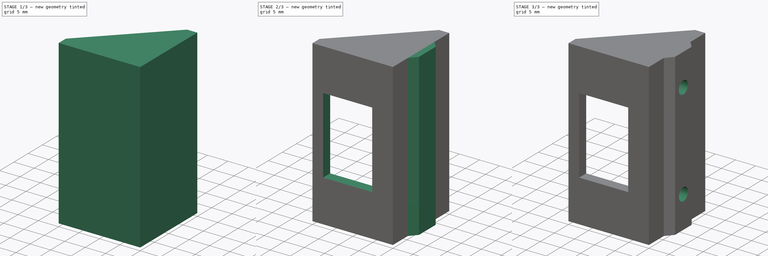
[diagram: build sequence overview — one tinted view per stage of 3, left to right]
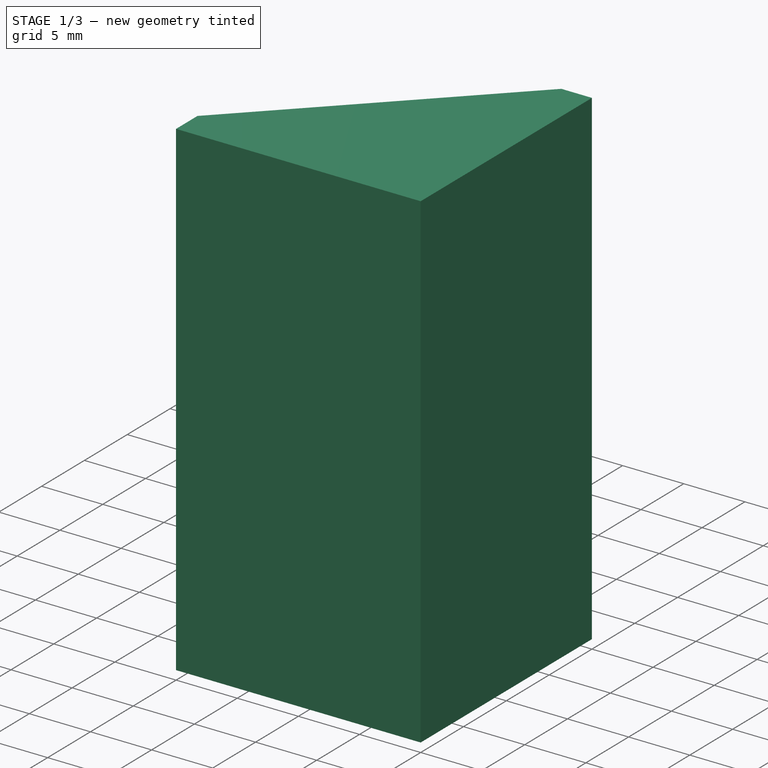
[diagram: stage 1 of 3 — iso view after this stage's code; geometry added in this stage tinted green]
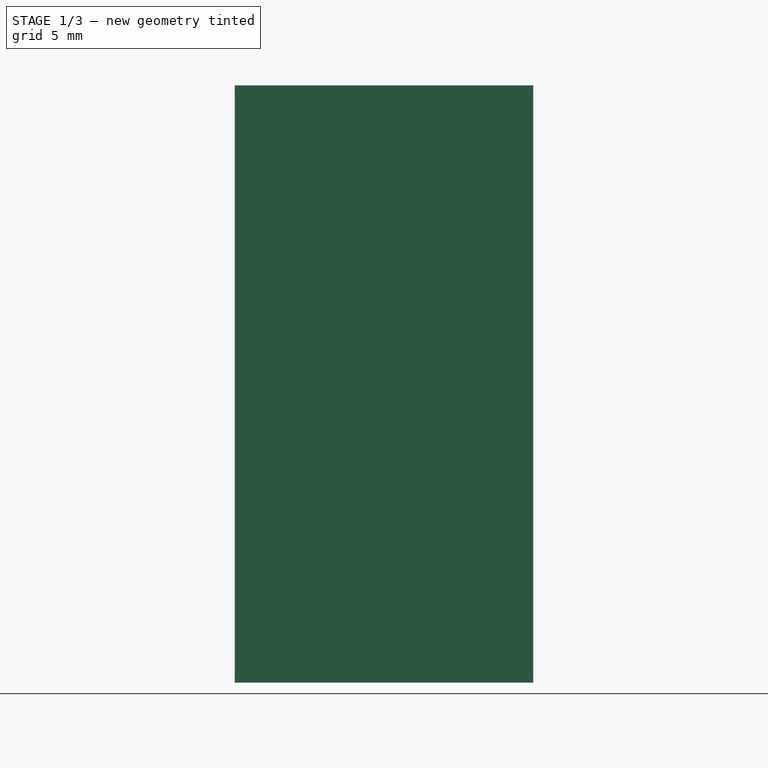
[diagram: stage 1 of 3 — front view after this stage's code; geometry added in this stage tinted green]
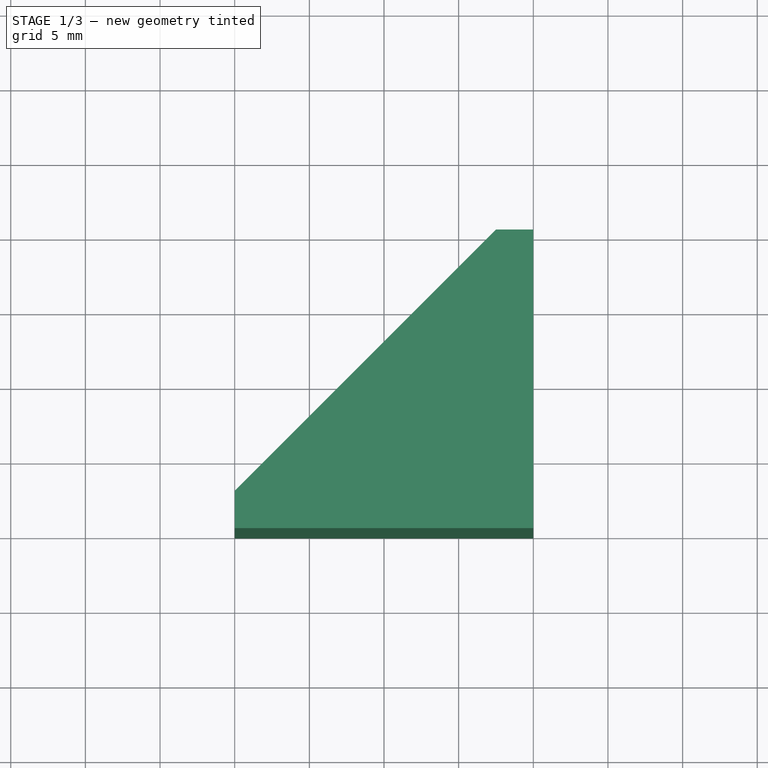
[diagram: stage 1 of 3 — top view after this stage's code; geometry added in this stage tinted green]
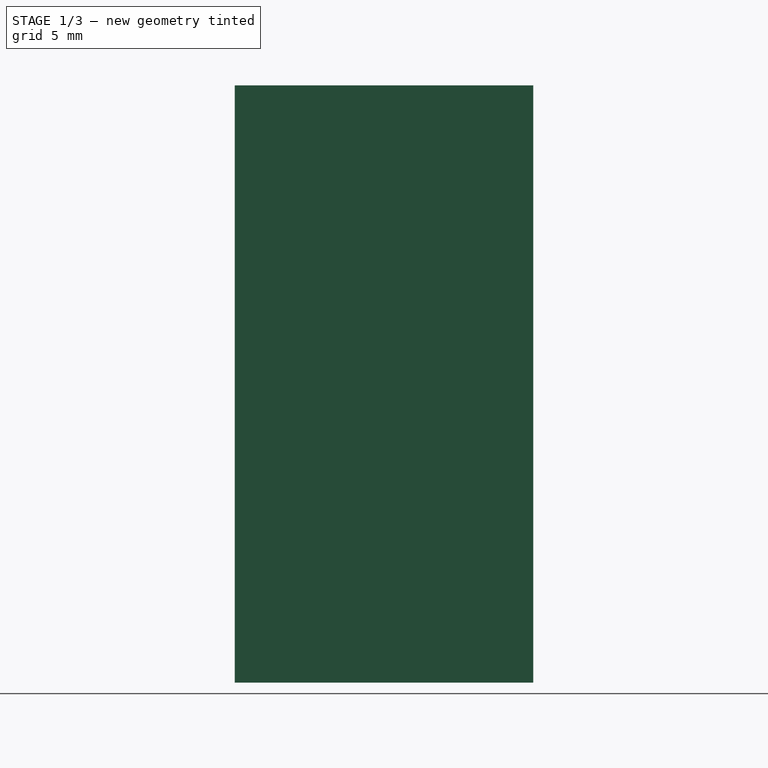
[diagram: stage 1 of 3 — right view after this stage's code; geometry added in this stage tinted green]
FCSTD DOCUMENT  (FreeCAD 0.20R29410 (Git))
Label: suporte-switch
License: All rights reserved
LicenseURL: http://en.wikipedia.org/wiki/All_rights_reserved
objects: Sketcher::SketchObject×6, PartDesign::Pad×4, PartDesign::Pocket×2, PartDesign::Chamfer×1, PartDesign::Body×1
note: 21 computed .brp shape members not serialized (recipe doc carries the construction recipe); baked Part::Feature solids carry a one-line shape summary decoded from their .brp

FEATURE [Sketcher::SketchObject] Sketch
  FullyConstrained = true
  MapMode = 5
  Support = -> [XY_Plane]
  sketch-geometry (6):
    g0: LineSegment StartX=0 StartY=0 StartZ=0 EndX=0 EndY=20 EndZ=0
    g1: LineSegment StartX=0 StartY=20 StartZ=0 EndX=-2.5 EndY=20 EndZ=0
    g2: LineSegment StartX=-2.5 StartY=20 StartZ=0 EndX=-2.5 EndY=2.5 EndZ=0
    g3: LineSegment StartX=-2.5 StartY=2.5 StartZ=0 EndX=-20 EndY=2.5 EndZ=0
    g4: LineSegment StartX=-20 StartY=2.5 StartZ=0 EndX=-20 EndY=0 EndZ=0
    g5: LineSegment StartX=-20 StartY=0 StartZ=0 EndX=0 EndY=0 EndZ=0
  constraints (17):
    c: Coincident(g-1,g0)
    c: Coincident(g0,g1)
    c: Coincident(g1,g2)
    c: Vertical(g2)
    c: Coincident(g2,g3)
    c: Horizontal(g3)
    c: Coincident(g3,g4)
    c: Coincident(g4,g5)
    c: Coincident(g5,g0)
    c: Horizontal(g5)
    c: Vertical(g0)
    c: Horizontal(g1)
    c: Vertical(g4)
    c: Equal(g4,g1)
    c: DistanceX(g5,g5) = 20
    c: Equal(g5,g0)
    c: DistanceY(g4,g4) = 2.5
FEATURE [PartDesign::Pad] Pad
  Direction = (0,0,1)
  Length = 40
  Length2 = 10
  Profile = -> Sketch
  ReferenceAxis = -> Sketch [N_Axis]
  Type = 0
FEATURE [Sketcher::SketchObject] Sketch001
  ExternalGeometry = -> [Pad]
  FullyConstrained = true
  MapMode = 5
  Placement = pos=(0,0,40) rot=(0,0,1;0rad)
  Support = -> [Pad]
  sketch-geometry (3):
    g0: LineSegment StartX=-2.5 StartY=20 StartZ=0 EndX=-20 EndY=2.5 EndZ=0
    g1: LineSegment StartX=-20 StartY=2.5 StartZ=0 EndX=-2.5 EndY=2.5 EndZ=0
    g2: LineSegment StartX=-2.5 StartY=2.5 StartZ=0 EndX=-2.5 EndY=20 EndZ=0
  constraints (6):
    c: Coincident(g0,g1)
    c: Coincident(g1,g2)
    c: Coincident(g2,g0)
    c: Coincident(g1,g-4)
    c: Coincident(g0,g-4)
    c: Coincident(g0,g-3)
FEATURE [PartDesign::Pad] Pad001
  BaseFeature = -> Pad
  Direction = (0,0,1)
  Length = 3
  Length2 = 10
  Profile = -> Sketch001
  ReferenceAxis = -> Sketch001 [N_Axis]
  Reversed = true
  Type = 0
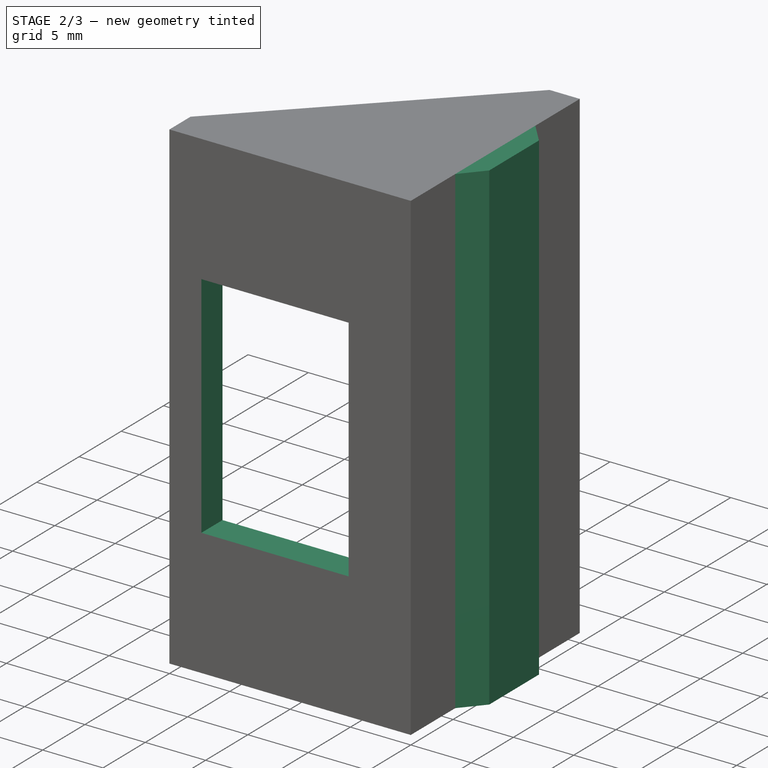
[diagram: stage 2 of 3 — iso view after this stage's code; geometry added in this stage tinted green]
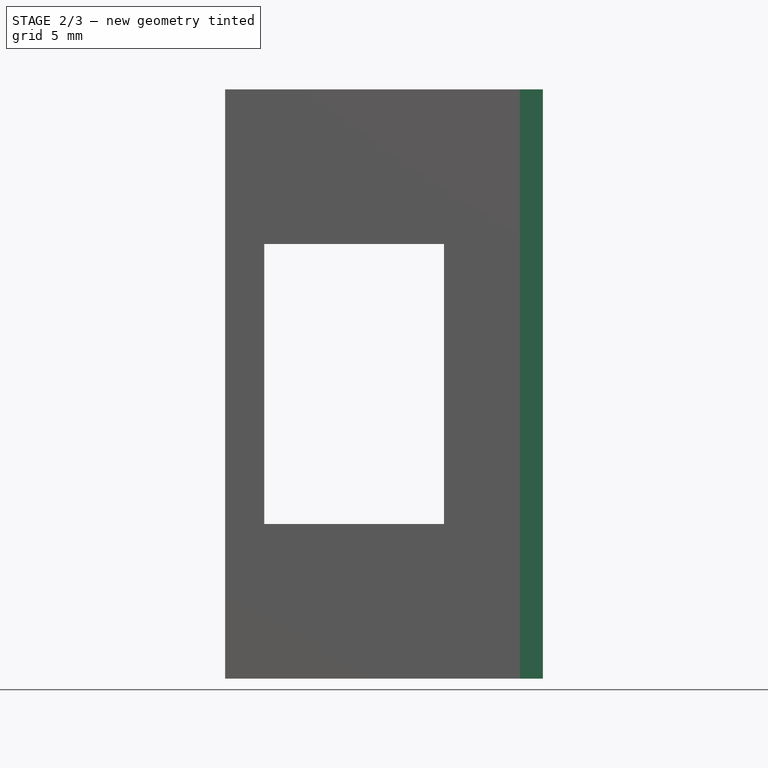
[diagram: stage 2 of 3 — front view after this stage's code; geometry added in this stage tinted green]
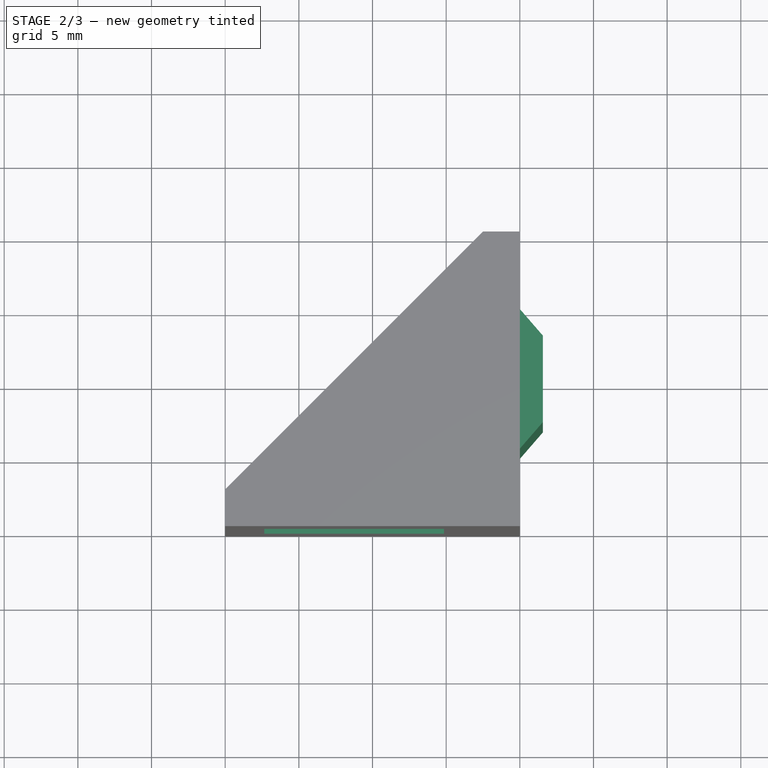
[diagram: stage 2 of 3 — top view after this stage's code; geometry added in this stage tinted green]
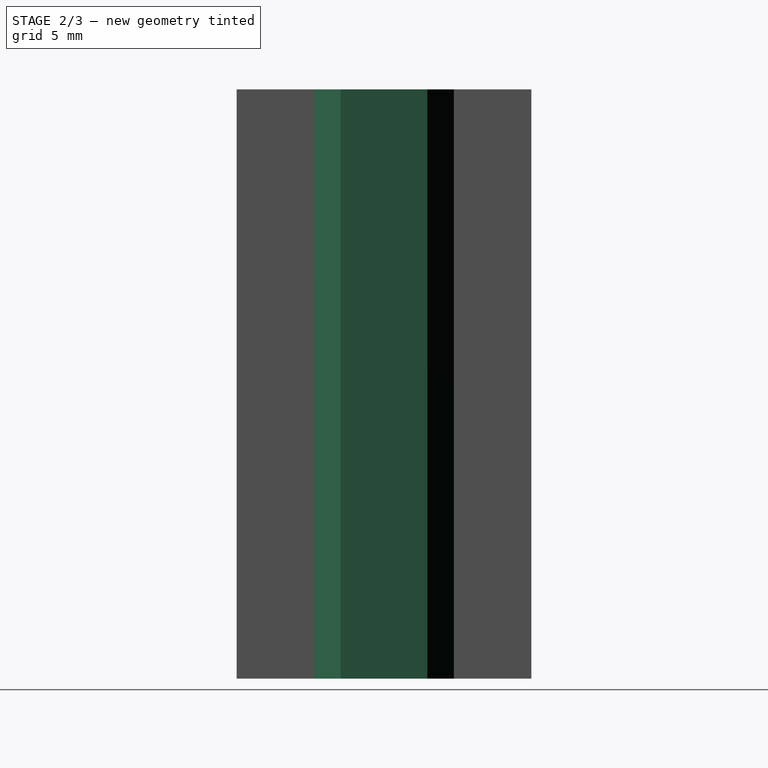
[diagram: stage 2 of 3 — right view after this stage's code; geometry added in this stage tinted green]
FEATURE [Sketcher::SketchObject] Sketch002
  ExternalGeometry = -> [Pad001]
  FullyConstrained = true
  MapMode = 5
  Placement = pos=(0,0,0) rot=(1,0,0;3.14159rad)
  Support = -> [Pad001]
  sketch-geometry (3):
    g0: LineSegment StartX=-20 StartY=-2.5 StartZ=0 EndX=-2.5 EndY=-20 EndZ=0
    g1: LineSegment StartX=-2.5 StartY=-20 StartZ=0 EndX=-2.5 EndY=-2.5 EndZ=0
    g2: LineSegment StartX=-2.5 StartY=-2.5 StartZ=0 EndX=-20 EndY=-2.5 EndZ=0
  constraints (6):
    c: Coincident(g0,g1)
    c: Coincident(g1,g2)
    c: Coincident(g2,g0)
    c: Coincident(g1,g-4)
    c: Coincident(g0,g-4)
    c: Coincident(g0,g-3)
FEATURE [PartDesign::Pad] Pad002
  BaseFeature = -> Pad001
  Direction = (0,0,-1)
  Length = 3
  Length2 = 10
  Profile = -> Sketch002
  ReferenceAxis = -> Sketch002 [N_Axis]
  Reversed = true
  Type = 0
FEATURE [Sketcher::SketchObject] Sketch003
  ExternalGeometry = -> [Pad002]
  FullyConstrained = true
  MapMode = 5
  Placement = pos=(0,0,0) rot=(1,0,0;3.14159rad)
  Support = -> [Pad002]
  sketch-geometry (6):
    g0: LineSegment StartX=0 StartY=-5.26 StartZ=0 EndX=0 EndY=-14.74 EndZ=0
    g1: LineSegment StartX=0 StartY=-14.74 StartZ=0 EndX=1.56 EndY=-12.94 EndZ=0
    g2: LineSegment StartX=1.56 StartY=-12.94 StartZ=0 EndX=1.56 EndY=-7.06 EndZ=0
    g3: LineSegment StartX=1.56 StartY=-7.06 StartZ=0 EndX=0 EndY=-5.26 EndZ=0
    g4: LineSegment StartX=0 StartY=0 StartZ=0 EndX=0 EndY=-5.26 EndZ=0
    g5: LineSegment StartX=0 StartY=-20 StartZ=0 EndX=0 EndY=-14.74 EndZ=0
  constraints (16):
    c: Vertical(g0)
    c: Coincident(g0,g1)
    c: Coincident(g1,g2)
    c: Vertical(g2)
    c: Coincident(g2,g3)
    c: Coincident(g3,g0)
    c: Coincident(g5,g-3)
    c: Coincident(g4,g0)
    c: Coincident(g4,g-1)
    c: Coincident(g5,g0)
    c: PointOnObject(g0,g-2)
    c: DistanceX(g1,g1) = 1.56
    c: DistanceY(g2,g2) = 5.88
    c: Equal(g5,g4)
    c: DistanceY(g0,g0) = 9.48
    c: Equal(g1,g3)
FEATURE [PartDesign::Pad] Pad003
  BaseFeature = -> Pad002
  Direction = (0,0,-1)
  Length = 10
  Length2 = 10
  Profile = -> Sketch003
  ReferenceAxis = -> Sketch003 [N_Axis]
  Reversed = true
  Type = 3
  UpToFace = -> Pad002 [Face5]
FEATURE [Sketcher::SketchObject] Sketch004
  ExternalGeometry = -> [Pad003]
  FullyConstrained = true
  MapMode = 5
  Placement = pos=(0,2.5,0) rot=(0,0.707107,0.707107;3.14159rad)
  Support = -> [Pad003]
  sketch-geometry (9):
    g0: LineSegment StartX=5.15 StartY=29.5 StartZ=0 EndX=17.35 EndY=29.5 EndZ=0
    g1: LineSegment StartX=17.35 StartY=29.5 StartZ=0 EndX=17.35 EndY=10.5 EndZ=0
    g2: LineSegment StartX=17.35 StartY=10.5 StartZ=0 EndX=5.15 EndY=10.5 EndZ=0
    g3: LineSegment StartX=5.15 StartY=10.5 StartZ=0 EndX=5.15 EndY=29.5 EndZ=0
    g4: LineSegment StartX=2.5 StartY=3 StartZ=0 EndX=20 EndY=37 EndZ=0
    g5: LineSegment StartX=2.5 StartY=37 StartZ=0 EndX=20 EndY=3 EndZ=0
    g6: GeomPoint X=11.25 Y=20 Z=0
    g7: LineSegment StartX=5.15 StartY=29.5 StartZ=0 EndX=17.35 EndY=10.5 EndZ=0
    g8: LineSegment StartX=5.15 StartY=10.5 StartZ=0 EndX=17.35 EndY=29.5 EndZ=0
  constraints (22):
    c: Coincident(g0,g1)
    c: Coincident(g1,g2)
    c: Coincident(g2,g3)
    c: Coincident(g3,g0)
    c: Horizontal(g0)
    c: Horizontal(g2)
    c: Vertical(g1)
    c: Vertical(g3)
    c: DistanceY(g1,g1) = 19
    c: DistanceX(g0,g0) = 12.2
    c: Coincident(g4,g-4)
    c: Coincident(g4,g-3)
    c: Coincident(g5,g-3)
    c: Coincident(g5,g-4)
    c: PointOnObject(g6,g5)
    c: PointOnObject(g6,g4)
    c: Coincident(g7,g0)
    c: Coincident(g7,g1)
    c: Coincident(g8,g2)
    c: Coincident(g8,g0)
    c: PointOnObject(g6,g8)
    c: PointOnObject(g6,g7)
FEATURE [PartDesign::Pocket] Pocket
  BaseFeature = -> Pad003
  Direction = (0,-1,2e-16)
  Length = 0
  Length2 = 5
  Profile = -> Sketch004
  ReferenceAxis = -> Sketch004 [N_Axis]
  Type = 3
  UpToFace = -> Pad003 [Face5]
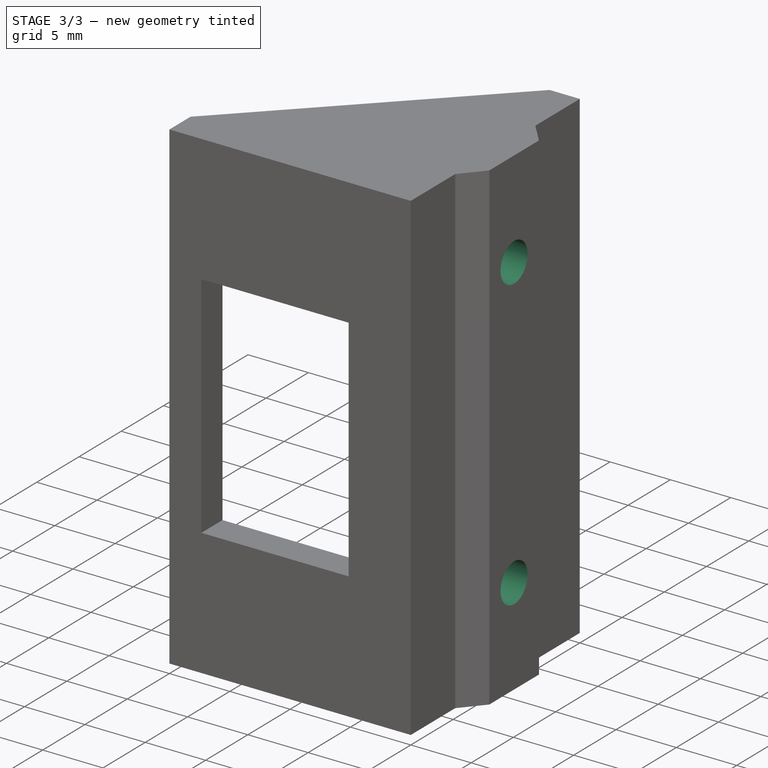
[diagram: stage 3 of 3 — iso view after this stage's code; geometry added in this stage tinted green]
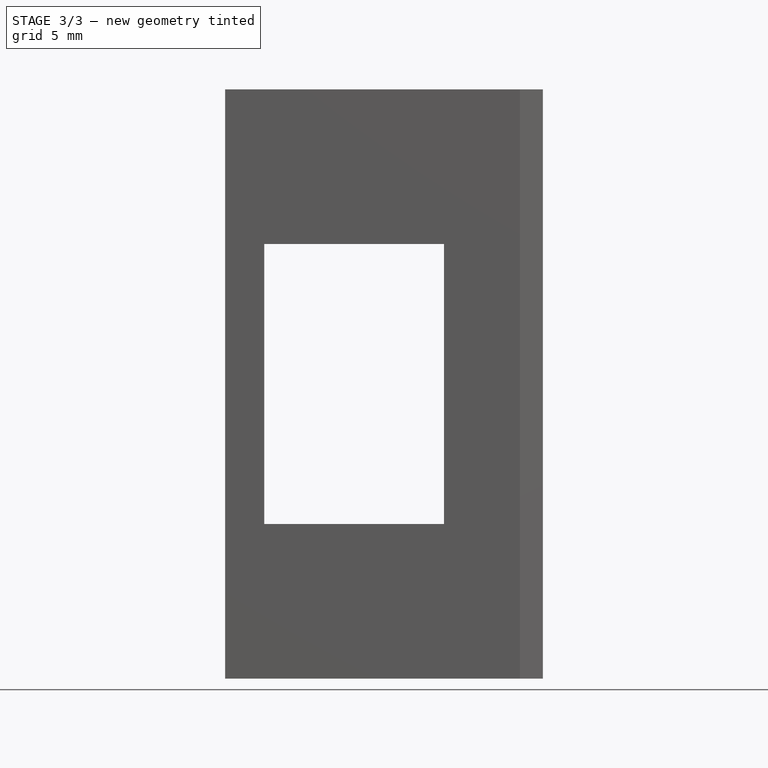
[diagram: stage 3 of 3 — front view after this stage's code; geometry added in this stage tinted green]
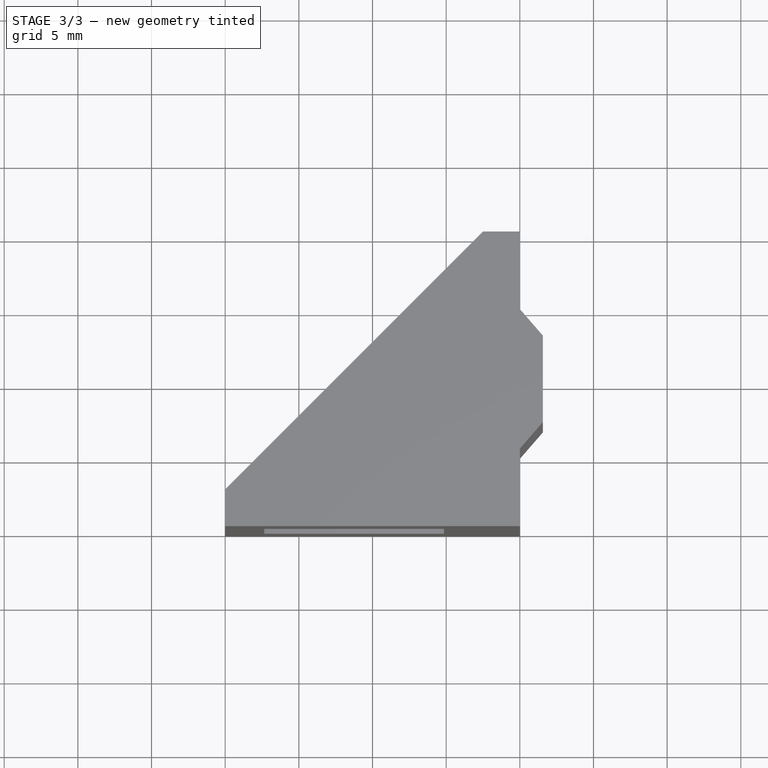
[diagram: stage 3 of 3 — top view after this stage's code; geometry added in this stage tinted green]
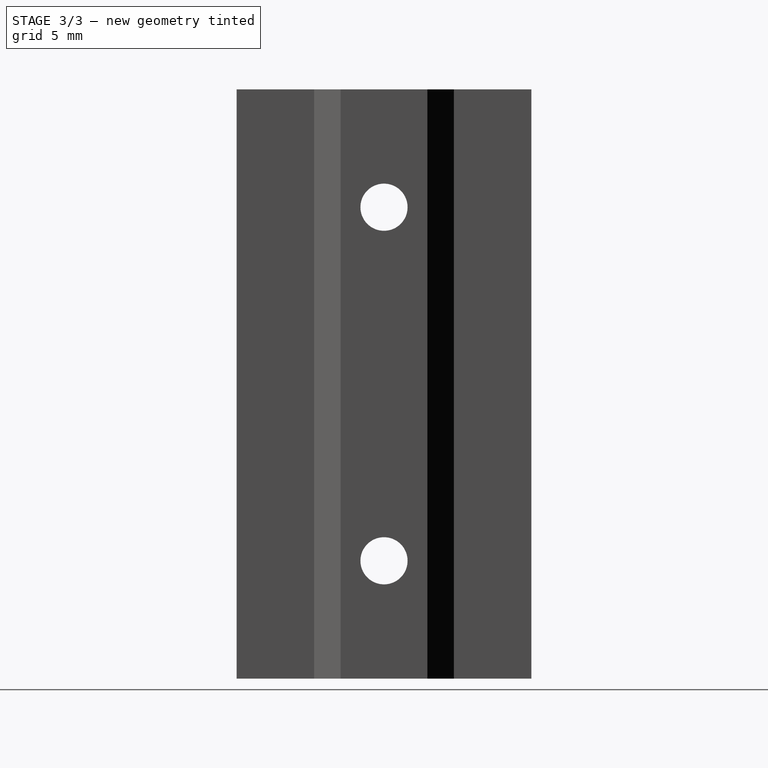
[diagram: stage 3 of 3 — right view after this stage's code; geometry added in this stage tinted green]
FEATURE [Sketcher::SketchObject] Sketch005
  ExternalGeometry = -> [Pocket]
  FullyConstrained = true
  MapMode = 5
  Placement = pos=(1.56,0,0) rot=(0.57735,0.57735,0.57735;2.0944rad)
  Support = -> [Pocket]
  sketch-geometry (6):
    g0: LineSegment StartX=7.06 StartY=40 StartZ=0 EndX=10 EndY=40 EndZ=0
    g1: LineSegment StartX=10 StartY=40 StartZ=0 EndX=12.94 EndY=40 EndZ=0
    g2: LineSegment StartX=10 StartY=40 StartZ=0 EndX=10 EndY=32 EndZ=0
    g3: LineSegment StartX=10 StartY=0 StartZ=0 EndX=10 EndY=8 EndZ=0
    g4: Circle CenterX=10 CenterY=32 CenterZ=0 NormalX=0 NormalY=0 NormalZ=1 AngleXU=0 Radius=1.6
    g5: Circle CenterX=10 CenterY=8 CenterZ=0 NormalX=0 NormalY=0 NormalZ=1 AngleXU=0 Radius=1.6
  constraints (16):
    c: Coincident(g0,g1)
    c: Coincident(g0,g-3)
    c: Coincident(g1,g-3)
    c: PointOnObject(g0,g-3)
    c: Equal(g0,g1)
    c: Coincident(g2,g0)
    c: Vertical(g2)
    c: PointOnObject(g3,g-1)
    c: Vertical(g3)
    c: Vertical(g3,g2)
    c: Equal(g3,g2)
    c: Coincident(g4,g2)
    c: Coincident(g5,g3)
    c: Equal(g5,g4)
    c: Radius(g5) = 1.6
    c: DistanceY(g2,g2) = 8
FEATURE [PartDesign::Pocket] Pocket001
  BaseFeature = -> Pocket
  Direction = (-1,0,0)
  Length = 0
  Length2 = 5
  Profile = -> Sketch005
  ReferenceAxis = -> Sketch005 [N_Axis]
  Type = 3
  UpToFace = -> Pocket [Face20]
FEATURE [PartDesign::Chamfer] Chamfer
  Angle = 45
  Base = -> Pocket001 [Edge59,Edge54,Edge60]
  BaseFeature = -> Pocket001
  ChamferType = 0
  FlipDirection = false
  Size = 2
  Size2 = 1
  SupportTransform = false
  UseAllEdges = false
FEATURE [PartDesign::Body] Body
  Group = -> [Sketch,Pad,Sketch001,Pad001,Sketch002,Pad002,Sketch003,Pad003,Sketch004,Pocket,Sketch005,Pocket001,Chamfer]
  Origin = -> Origin
  Tip = -> Chamfer
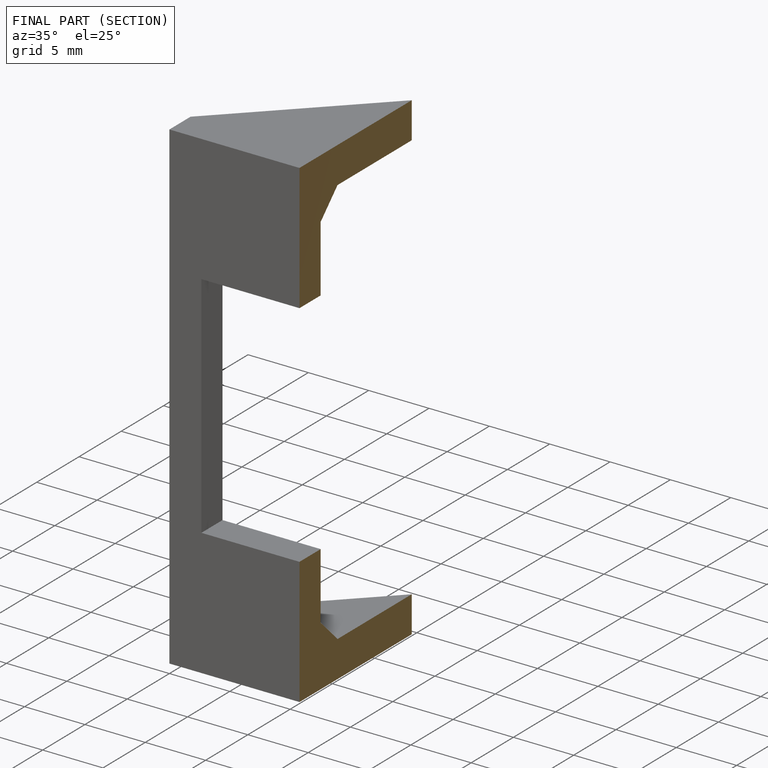
[diagram: finished part — half-section view (interior)]
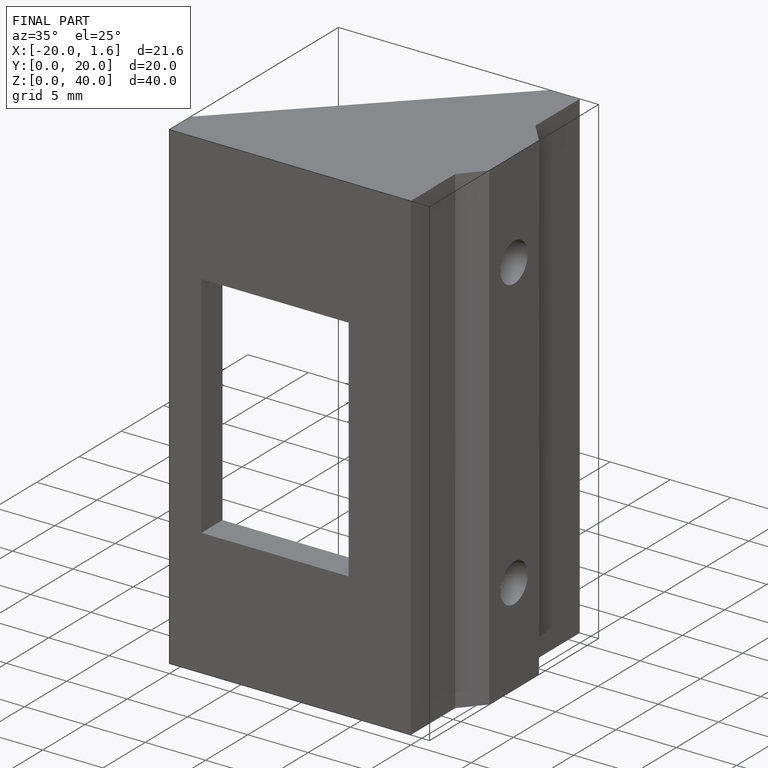
[diagram: finished part — iso view with bounding-box wireframe]
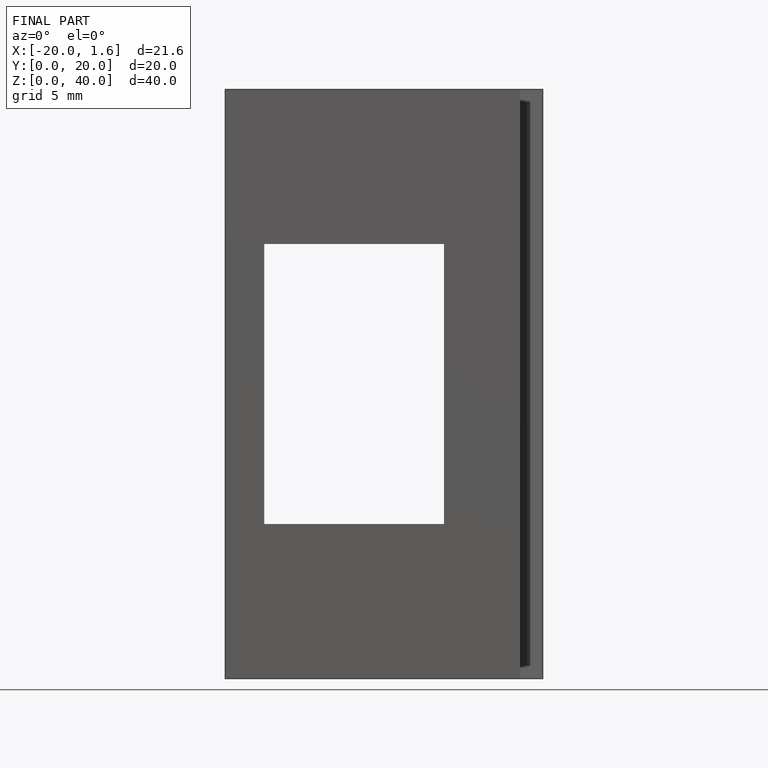
[diagram: finished part — front view with bounding-box wireframe]
